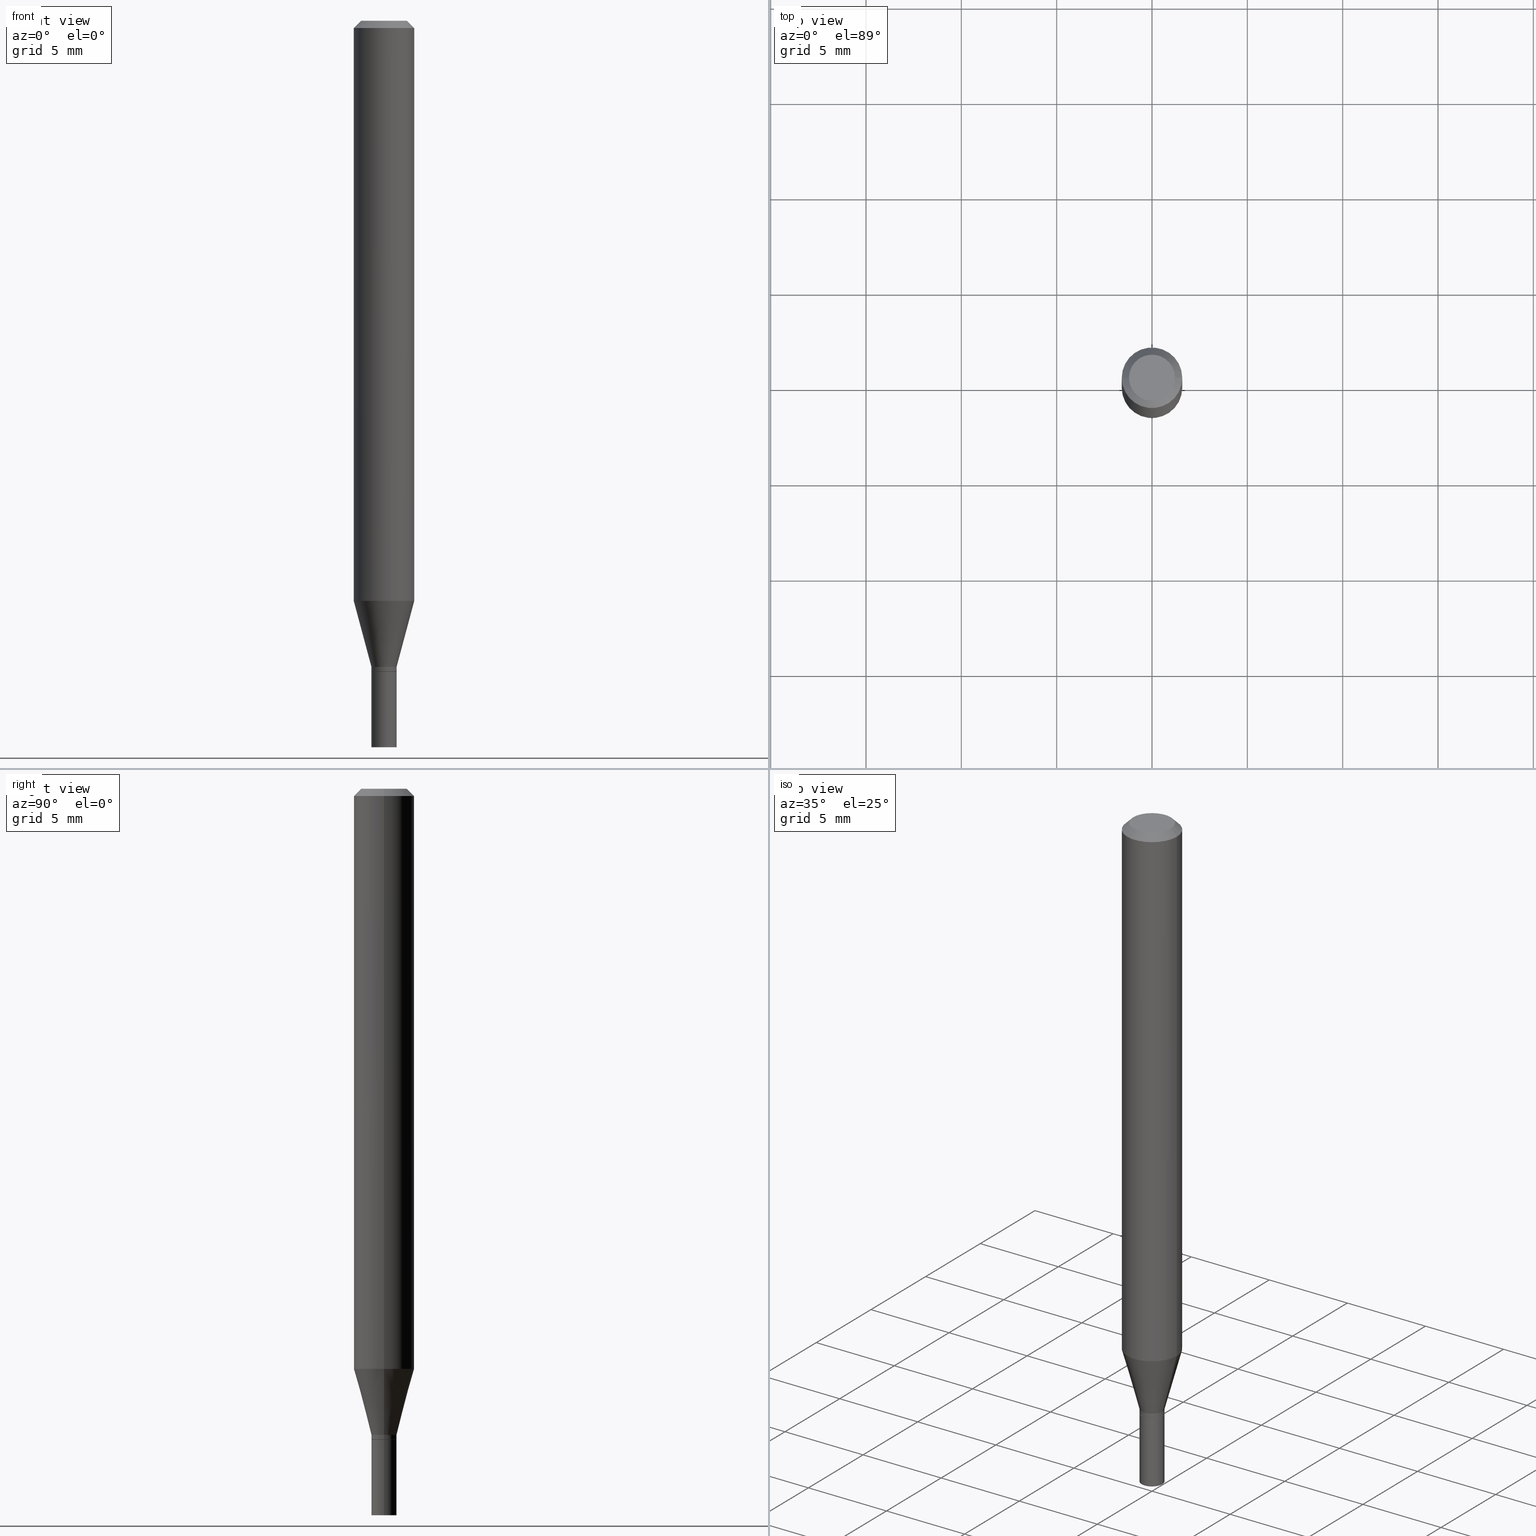
[diagram: canonical four-view strip — front | top / right | iso, engineering-drawing reading convention]
A machine part, canonical four-view strip (front | top / right | iso — engineering-drawing reading convention). The complete STEP part file that produces these views, byte-faithful:
ISO-10303-21;
HEADER;
FILE_DESCRIPTION (( 'STEP AP203' ),
    '1' );
FILE_NAME ('01203.STEP',
    '2024-03-19T23:59:14',
    ( '' ),
    ( '' ),
    'SwSTEP 2.0',
    'SolidWorks 2023',
    '' );
FILE_SCHEMA (( 'CONFIG_CONTROL_DESIGN' ));
ENDSEC;

DATA;
#1 = DIRECTION ( 'NONE',  ( -2.438088387897960049E-29, 3.491481338843145188E-15, 1.000000000000000000 ) ) ;
#2 = DIRECTION ( 'NONE',  ( -2.445468806185136597E-29, 3.491481338843145583E-15, 1.000000000000000000 ) ) ;
#3 = ORIENTED_EDGE ( 'NONE', *, *, #125, .F. ) ;
#4 = AXIS2_PLACEMENT_3D ( 'NONE', #170, #451, #206 ) ;
#5 = AXIS2_PLACEMENT_3D ( 'NONE', #412, #308, #277 ) ;
#6 = CALENDAR_DATE ( 2024, 19, 3 ) ;
#7 = FACE_OUTER_BOUND ( 'NONE', #198, .T. ) ;
#8 = DIRECTION ( 'NONE',  ( -2.445468806185136597E-29, 3.491481338843145583E-15, 1.000000000000000000 ) ) ;
#9 = CARTESIAN_POINT ( 'NONE',  ( -0.02549999999999999489, -4.508713294612252827E-15, -1.344000000000000306 ) ) ;
#10 = ADVANCED_FACE ( 'NONE', ( #202 ), #124, .F. ) ;
#11 = LINE ( 'NONE', #232, #123 ) ;
#12 = CARTESIAN_POINT ( 'NONE',  ( 0.02599999999999999534, -1.815570296198429286E-16, 1.267805961706943054E-30 ) ) ;
#13 = DIRECTION ( 'NONE',  ( -2.445468806185136597E-29, 3.491481338843145583E-15, 1.000000000000000000 ) ) ;
#14 = CIRCLE ( 'NONE', #373, 0.02599999999999991901 ) ;
#15 = AXIS2_PLACEMENT_3D ( 'NONE', #119, #151, #433 ) ;
#16 = PERSON_AND_ORGANIZATION ( #127, #191 ) ;
#17 = FACE_OUTER_BOUND ( 'NONE', #322, .T. ) ;
#18 = CARTESIAN_POINT ( 'NONE',  ( 1.815570296198757649E-16, 0.02599999999999530464, -1.344000000000000306 ) ) ;
#19 = DIRECTION ( 'NONE',  ( -2.445468806185136597E-29, 3.491481338843145583E-15, 1.000000000000000000 ) ) ;
#20 = CIRCLE ( 'NONE', #285, 0.02599999999999999534 ) ;
#21 = AXIS2_PLACEMENT_3D ( 'NONE', #455, #340, #447 ) ;
#22 = DIRECTION ( 'NONE',  ( 2.438088387897960049E-29, -3.491481338843145188E-15, -1.000000000000000000 ) ) ;
#23 = EDGE_CURVE ( 'NONE', #268, #329, #14, .T. ) ;
#24 = ORIENTED_EDGE ( 'NONE', *, *, #416, .T. ) ;
#25 = AXIS2_PLACEMENT_3D ( 'NONE', #217, #167, #275 ) ;
#26 = CONICAL_SURFACE ( 'NONE', #139, 0.02549999999999999489, 0.7853981633974739252 ) ;
#27 = ORIENTED_EDGE ( 'NONE', *, *, #68, .F. ) ;
#28 = VERTEX_POINT ( 'NONE', #9 ) ;
#29 = EDGE_CURVE ( 'NONE', #324, #457, #335, .T. ) ;
#30 = ORIENTED_EDGE ( 'NONE', *, *, #434, .T. ) ;
#31 = ORIENTED_EDGE ( 'NONE', *, *, #195, .T. ) ;
#32 = DIRECTION ( 'NONE',  ( -2.445468806185136877E-29, 3.491481338843145188E-15, 1.000000000000000000 ) ) ;
#33 = AXIS2_PLACEMENT_3D ( 'NONE', #266, #121, #400 ) ;
#34 = APPROVAL_PERSON_ORGANIZATION ( #231, #86, #296 ) ;
#35 = EDGE_LOOP ( 'NONE', ( #315, #313 ) ) ;
#36 =( NAMED_UNIT ( * ) SI_UNIT ( $, .STERADIAN. ) SOLID_ANGLE_UNIT ( ) );
#37 = ADVANCED_FACE ( 'NONE', ( #445 ), #380, .T. ) ;
#38 = ORIENTED_EDGE ( 'NONE', *, *, #214, .T. ) ;
#39 = COORDINATED_UNIVERSAL_TIME_OFFSET ( 5, 0, .BEHIND. ) ;
#40 = DIRECTION ( 'NONE',  ( -2.445468806185136597E-29, 3.491481338843145583E-15, 1.000000000000000000 ) ) ;
#41 = CARTESIAN_POINT ( 'NONE',  ( 0.02599999999999992248, -4.839193135636598797E-15, -1.334000000000000075 ) ) ;
#42 = VERTEX_POINT ( 'NONE', #215 ) ;
#43 = CARTESIAN_POINT ( 'NONE',  ( 0.02549999999999999489, -4.870616467686188228E-15, -1.344000000000000306 ) ) ;
#44 = DIRECTION ( 'NONE',  ( 2.438088387897960049E-29, -3.491481338843145188E-15, -1.000000000000000000 ) ) ;
#45 = VERTEX_POINT ( 'NONE', #173 ) ;
#46 = VECTOR ( 'NONE', #442, 39.37007874015748143 ) ;
#47 = APPROVAL_PERSON_ORGANIZATION ( #52, #64, #201 ) ;
#48 = CARTESIAN_POINT ( 'NONE',  ( 2.929133982546189833E-29, -4.182027026132951363E-15, -1.197780145523736017 ) ) ;
#49 = ORIENTED_EDGE ( 'NONE', *, *, #312, .F. ) ;
#50 = EDGE_CURVE ( 'NONE', #45, #324, #279, .T. ) ;
#51 = ORIENTED_EDGE ( 'NONE', *, *, #68, .T. ) ;
#52 = PERSON_AND_ORGANIZATION ( #127, #191 ) ;
#53 = VECTOR ( 'NONE', #350, 39.37007874015748143 ) ;
#54 = DIRECTION ( 'NONE',  ( 1.000000000000000000, -6.982962677686276966E-15, 0.000000000000000000 ) ) ;
#55 = SECURITY_CLASSIFICATION ( '', '', #307 ) ;
#56 = EDGE_CURVE ( 'NONE', #355, #353, #72, .T. ) ;
#57 = DIRECTION ( 'NONE',  ( 1.000000000000000000, -6.982962677686266711E-15, 0.000000000000000000 ) ) ;
#58 = LINE ( 'NONE', #309, #394 ) ;
#59 = DIRECTION ( 'NONE',  ( -2.445468806185136597E-29, 3.491481338843145583E-15, 1.000000000000000000 ) ) ;
#60 = COORDINATED_UNIVERSAL_TIME_OFFSET ( 5, 0, .BEHIND. ) ;
#61 = CARTESIAN_POINT ( 'NONE',  ( -0.02599999999999999534, -4.780145352537327941E-15, -1.344000000000000306 ) ) ;
#62 = ADVANCED_FACE ( 'NONE', ( #223 ), #238, .F. ) ;
#63 = DIRECTION ( 'NONE',  ( 1.000000000000000000, -6.982962677686278543E-15, 0.000000000000000000 ) ) ;
#64 = APPROVAL ( #209, 'UNSPECIFIED' ) ;
#65 = AXIS2_PLACEMENT_3D ( 'NONE', #18, #22, #245 ) ;
#66 = MANIFOLD_SOLID_BREP ( 'Body-Move/Copy2[1]', #122 ) ;
#67 = ORIENTED_EDGE ( 'NONE', *, *, #29, .F. ) ;
#68 = EDGE_CURVE ( 'NONE', #42, #361, #11, .T. ) ;
#69 = APPROVAL_PERSON_ORGANIZATION ( #411, #288, #207 ) ;
#70 = EDGE_LOOP ( 'NONE', ( #252, #415, #179, #429 ) ) ;
#71 = DIRECTION ( 'NONE',  ( -2.445468806185136597E-29, 3.491481338843145583E-15, 1.000000000000000000 ) ) ;
#72 = LINE ( 'NONE', #41, #74 ) ;
#73 = CC_DESIGN_DATE_AND_TIME_ASSIGNMENT ( #239, #234, ( #387 ) ) ;
#74 = VECTOR ( 'NONE', #255, 39.37007874015747433 ) ;
#75 = CARTESIAN_POINT ( 'NONE',  ( -0.04749999999999999362, 3.578768372314212971E-16, 1.471062854863204137E-16 ) ) ;
#76 = DIRECTION ( 'NONE',  ( 1.000000000000000000, -6.982962677686267499E-15, 4.852736867747366768E-29 ) ) ;
#77 = AXIS2_PLACEMENT_3D ( 'NONE', #197, #323, #294 ) ;
#78 = LOCAL_TIME ( 19, 59, 14.00000000000000000, #271 ) ;
#79 = LINE ( 'NONE', #421, #53 ) ;
#80 = ORIENTED_EDGE ( 'NONE', *, *, #434, .F. ) ;
#81 = DIRECTION ( 'NONE',  ( 1.000000000000000000, -6.982962677686258822E-15, 0.000000000000000000 ) ) ;
#82 = FACE_OUTER_BOUND ( 'NONE', #140, .T. ) ;
#83 = PERSON_AND_ORGANIZATION ( #127, #191 ) ;
#84 = LINE ( 'NONE', #43, #163 ) ;
#85 = CONICAL_SURFACE ( 'NONE', #300, 0.06250000000000000000, 0.7853981633974435050 ) ;
#86 = APPROVAL ( #360, 'UNSPECIFIED' ) ;
#87 = CARTESIAN_POINT ( 'NONE',  ( 3.668203209277705088E-31, -5.237222008264718399E-17, -0.01499999999999999944 ) ) ;
#88 = DATE_AND_TIME ( #178, #301 ) ;
#89 = ADVANCED_FACE ( 'NONE', ( #203 ), #463, .T. ) ;
#90 = ADVANCED_FACE ( 'NONE', ( #333 ), #438, .T. ) ;
#91 = CARTESIAN_POINT ( 'NONE',  ( 2.929133982546189833E-29, -4.182027026132951363E-15, -1.197780145523736017 ) ) ;
#92 = AXIS2_PLACEMENT_3D ( 'NONE', #99, #414, #131 ) ;
#93 = CARTESIAN_POINT ( 'NONE',  ( 3.262255387450972157E-29, -4.657636106016756115E-15, -1.334000000000000075 ) ) ;
#94 = CC_DESIGN_APPROVAL ( #288, ( #55 ) ) ;
#95 = PERSON_AND_ORGANIZATION_ROLE ( 'design_supplier' ) ;
#96 = DIRECTION ( 'NONE',  ( -2.445468806185136597E-29, 3.491481338843145583E-15, 1.000000000000000000 ) ) ;
#97 = EDGE_CURVE ( 'NONE', #224, #418, #249, .T. ) ;
#98 = EDGE_CURVE ( 'NONE', #418, #107, #157, .T. ) ;
#99 = CARTESIAN_POINT ( 'NONE',  ( 3.262255387450972157E-29, -4.657636106016756115E-15, -1.334000000000000075 ) ) ;
#100 = APPROVAL_DATE_TIME ( #134, #64 ) ;
#101 = CIRCLE ( 'NONE', #320, 0.06250000000000000000 ) ;
#102 = LOCAL_TIME ( 19, 59, 14.00000000000000000, #165 ) ;
#103 = EDGE_LOOP ( 'NONE', ( #38, #24, #104, #67 ) ) ;
#104 = ORIENTED_EDGE ( 'NONE', *, *, #352, .F. ) ;
#105 = CC_DESIGN_APPROVAL ( #64, ( #280 ) ) ;
#106 = ORIENTED_EDGE ( 'NONE', *, *, #29, .T. ) ;
#107 = VERTEX_POINT ( 'NONE', #431 ) ;
#108 = CARTESIAN_POINT ( 'NONE',  ( 3.286710075512824263E-29, -4.692550919405188553E-15, -1.344000000000000306 ) ) ;
#109 = EDGE_CURVE ( 'NONE', #175, #28, #337, .T. ) ;
#110 =( LENGTH_UNIT ( ) NAMED_UNIT ( * ) SI_UNIT ( $, .METRE. ) );
#111 = CARTESIAN_POINT ( 'NONE',  ( 3.286710075512824263E-29, -4.692550919405188553E-15, -1.344000000000000306 ) ) ;
#112 = DIRECTION ( 'NONE',  ( -2.445468806185136597E-29, 3.491481338843145583E-15, 1.000000000000000000 ) ) ;
#113 = APPLICATION_PROTOCOL_DEFINITION ( 'international standard', 'config_control_design', 1994, #391 ) ;
#114 = AXIS2_PLACEMENT_3D ( 'NONE', #236, #13, #164 ) ;
#115 = DIRECTION ( 'NONE',  ( 1.000000000000000000, -6.982962677686276966E-15, 0.000000000000000000 ) ) ;
#116 = DIRECTION ( 'NONE',  ( -1.000000000000000000, 6.982962677686265922E-15, -4.876176775795935793E-29 ) ) ;
#117 = CARTESIAN_POINT ( 'NONE',  ( 3.668203209277704895E-29, -5.237222008264718177E-15, -1.500000000000000222 ) ) ;
#118 = ORIENTED_EDGE ( 'NONE', *, *, #243, .T. ) ;
#119 = CARTESIAN_POINT ( 'NONE',  ( 0.000000000000000000, 0.000000000000000000, 0.000000000000000000 ) ) ;
#120 = EDGE_CURVE ( 'NONE', #224, #282, #392, .T. ) ;
#121 = DIRECTION ( 'NONE',  ( -2.445468806185136597E-29, 3.491481338843145583E-15, 1.000000000000000000 ) ) ;
#122 = CLOSED_SHELL ( 'NONE', ( #246, #453, #90, #278 ) ) ;
#123 = VECTOR ( 'NONE', #321, 39.37007874015747433 ) ;
#124 = PLANE ( 'NONE',  #4 ) ;
#125 = EDGE_CURVE ( 'NONE', #353, #282, #79, .T. ) ;
#126 = DIRECTION ( 'NONE',  ( -2.445468806185136597E-29, 3.491481338843145583E-15, 1.000000000000000000 ) ) ;
#127 = PERSON ( 'UNSPECIFIED', 'UNSPECIFIED', 'UNSPECIFIED', ('UNSPECIFIED'), ('UNSPECIFIED'), ('UNSPECIFIED') ) ;
#128 = EDGE_CURVE ( 'NONE', #418, #224, #210, .T. ) ;
#129 = DIRECTION ( 'NONE',  ( -2.445468806185136597E-29, 3.491481338843145583E-15, 1.000000000000000000 ) ) ;
#130 = DATE_TIME_ROLE ( 'classification_date' ) ;
#131 = DIRECTION ( 'NONE',  ( 1.000000000000000000, -6.982962677686278543E-15, 0.000000000000000000 ) ) ;
#132 = AXIS2_PLACEMENT_3D ( 'NONE', #159, #2, #466 ) ;
#133 = DIRECTION ( 'NONE',  ( -2.445468806185136877E-29, 3.491481338843145188E-15, 1.000000000000000000 ) ) ;
#134 = DATE_AND_TIME ( #262, #102 ) ;
#135 = DIRECTION ( 'NONE',  ( -2.445468806185136597E-29, 3.491481338843145583E-15, 1.000000000000000000 ) ) ;
#136 = CARTESIAN_POINT ( 'NONE',  ( -0.02599999999999992248, 1.847411112976254975E-16, -1.278923123466271707E-30 ) ) ;
#137 = AXIS2_PLACEMENT_3D ( 'NONE', #317, #71, #76 ) ;
#138 =( GEOMETRIC_REPRESENTATION_CONTEXT ( 3 ) GLOBAL_UNCERTAINTY_ASSIGNED_CONTEXT ( ( #166 ) ) GLOBAL_UNIT_ASSIGNED_CONTEXT ( ( #200, #290, #36 ) ) REPRESENTATION_CONTEXT ( 'NONE', 'WORKASPACE' ) );
#139 = AXIS2_PLACEMENT_3D ( 'NONE', #111, #289, #115 ) ;
#140 = EDGE_LOOP ( 'NONE', ( #427, #189, #376, #196 ) ) ;
#141 = ADVANCED_FACE ( 'NONE', ( #229 ), #465, .T. ) ;
#142 = EDGE_CURVE ( 'NONE', #361, #107, #58, .T. ) ;
#143 = ORIENTED_EDGE ( 'NONE', *, *, #186, .T. ) ;
#144 = ORIENTED_EDGE ( 'NONE', *, *, #331, .F. ) ;
#145 = AXIS2_PLACEMENT_3D ( 'NONE', #377, #96, #57 ) ;
#146 = DIRECTION ( 'NONE',  ( 1.000000000000000000, -6.982962677686258822E-15, 0.000000000000000000 ) ) ;
#147 = EDGE_CURVE ( 'NONE', #28, #329, #351, .T. ) ;
#148 = DIRECTION ( 'NONE',  ( 1.000000000000000000, -6.982962677686270655E-15, 0.000000000000000000 ) ) ;
#149 = CARTESIAN_POINT ( 'NONE',  ( 3.286710075512824263E-29, -4.692550919405188553E-15, -1.344000000000000306 ) ) ;
#150 = CARTESIAN_POINT ( 'NONE',  ( 0.02599999999999992248, -4.839193135636598797E-15, -1.334000000000000075 ) ) ;
#151 = DIRECTION ( 'NONE',  ( 0.000000000000000000, 0.000000000000000000, 1.000000000000000000 ) ) ;
#152 = CARTESIAN_POINT ( 'NONE',  ( 3.668203209277705088E-31, -5.237222008264718399E-17, -0.01499999999999999944 ) ) ;
#153 = VECTOR ( 'NONE', #356, 39.37007874015748143 ) ;
#154 = CARTESIAN_POINT ( 'NONE',  ( -3.597438323505677396E-45, 5.136188506020282969E-31, 1.471062854863228050E-16 ) ) ;
#155 = ORIENTED_EDGE ( 'NONE', *, *, #258, .F. ) ;
#156 = MECHANICAL_CONTEXT ( 'NONE', #327, 'mechanical' ) ;
#157 = LINE ( 'NONE', #297, #153 ) ;
#158 = PERSON_AND_ORGANIZATION_ROLE ( 'creator' ) ;
#159 = CARTESIAN_POINT ( 'NONE',  ( 0.000000000000000000, 0.000000000000000000, 0.000000000000000000 ) ) ;
#160 = APPROVAL_DATE_TIME ( #374, #288 ) ;
#161 = ADVANCED_FACE ( 'NONE', ( #378 ), #367, .T. ) ;
#162 = EDGE_LOOP ( 'NONE', ( #382, #363 ) ) ;
#163 = VECTOR ( 'NONE', #237, 39.37007874015748143 ) ;
#164 = DIRECTION ( 'NONE',  ( 1.000000000000000000, -6.982962677686267499E-15, 4.876176775795936353E-29 ) ) ;
#165 = COORDINATED_UNIVERSAL_TIME_OFFSET ( 5, 0, .BEHIND. ) ;
#166 = UNCERTAINTY_MEASURE_WITH_UNIT (LENGTH_MEASURE( 1.000000000000000082E-05 ), #200, 'distance_accuracy_value', 'NONE');
#167 = DIRECTION ( 'NONE',  ( -2.445468806185136597E-29, 3.491481338843145583E-15, 1.000000000000000000 ) ) ;
#168 = ORIENTED_EDGE ( 'NONE', *, *, #416, .F. ) ;
#169 = FACE_OUTER_BOUND ( 'NONE', #103, .T. ) ;
#170 = CARTESIAN_POINT ( 'NONE',  ( 3.286710075512824263E-29, -4.692550919405188553E-15, -1.344000000000000306 ) ) ;
#171 = CIRCLE ( 'NONE', #182, 0.06250000000000000000 ) ;
#172 = CYLINDRICAL_SURFACE ( 'NONE', #25, 0.02599999999999999534 ) ;
#173 = CARTESIAN_POINT ( 'NONE',  ( -0.02599999999999999534, -4.780145352537327941E-15, -1.500000000000000222 ) ) ;
#174 = CC_DESIGN_PERSON_AND_ORGANIZATION_ASSIGNMENT ( #260, #364, ( #345 ) ) ;
#175 = VERTEX_POINT ( 'NONE', #302 ) ;
#176 = ORIENTED_EDGE ( 'NONE', *, *, #125, .T. ) ;
#177 = ADVANCED_FACE ( 'NONE', ( #7 ), #85, .T. ) ;
#178 = CALENDAR_DATE ( 2024, 19, 3 ) ;
#179 = ORIENTED_EDGE ( 'NONE', *, *, #251, .T. ) ;
#180 = ADVANCED_FACE ( 'NONE', ( #82 ), #425, .T. ) ;
#181 = ORIENTED_EDGE ( 'NONE', *, *, #97, .T. ) ;
#182 = AXIS2_PLACEMENT_3D ( 'NONE', #87, #240, #366 ) ;
#183 = CIRCLE ( 'NONE', #358, 0.02549999999999999489 ) ;
#184 = PERSON_AND_ORGANIZATION_ROLE ( 'creator' ) ;
#185 = ORIENTED_EDGE ( 'NONE', *, *, #346, .T. ) ;
#186 = EDGE_CURVE ( 'NONE', #353, #361, #101, .T. ) ;
#187 = ADVANCED_FACE ( 'NONE', ( #291 ), #261, .T. ) ;
#188 = ORIENTED_EDGE ( 'NONE', *, *, #449, .F. ) ;
#189 = ORIENTED_EDGE ( 'NONE', *, *, #147, .T. ) ;
#190 = DIRECTION ( 'NONE',  ( -2.445468806185136877E-29, 3.491481338843145188E-15, 1.000000000000000000 ) ) ;
#191 = ORGANIZATION ( 'UNSPECIFIED', 'UNSPECIFIED', '' ) ;
#192 = FACE_OUTER_BOUND ( 'NONE', #359, .T. ) ;
#193 = DIRECTION ( 'NONE',  ( 1.000000000000000000, -6.982962677686258822E-15, 0.000000000000000000 ) ) ;
#194 = DIMENSIONAL_EXPONENTS ( 1.000000000000000000, 0.000000000000000000, 0.000000000000000000, 0.000000000000000000, 0.000000000000000000, 0.000000000000000000, 0.000000000000000000 ) ;
#195 = EDGE_CURVE ( 'NONE', #107, #282, #171, .T. ) ;
#196 = ORIENTED_EDGE ( 'NONE', *, *, #365, .F. ) ;
#197 = CARTESIAN_POINT ( 'NONE',  ( 0.000000000000000000, 0.000000000000000000, 0.000000000000000000 ) ) ;
#198 = EDGE_LOOP ( 'NONE', ( #462, #385, #432, #31 ) ) ;
#199 = AXIS2_PLACEMENT_3D ( 'NONE', #341, #129, #448 ) ;
#200 =( CONVERSION_BASED_UNIT ( 'INCH', #330 ) LENGTH_UNIT ( ) NAMED_UNIT ( #194 ) );
#201 = APPROVAL_ROLE ( '' ) ;
#202 = FACE_OUTER_BOUND ( 'NONE', #386, .T. ) ;
#203 = FACE_OUTER_BOUND ( 'NONE', #269, .T. ) ;
#204 = CALENDAR_DATE ( 2024, 19, 3 ) ;
#205 = DIRECTION ( 'NONE',  ( -2.445468806185136597E-29, 3.491481338843145583E-15, 1.000000000000000000 ) ) ;
#206 = DIRECTION ( 'NONE',  ( 1.000000000000000000, -6.982962677686265922E-15, 4.876176775795935793E-29 ) ) ;
#207 = APPROVAL_ROLE ( '' ) ;
#208 = DIRECTION ( 'NONE',  ( 2.445468806185136597E-29, -3.491481338843145583E-15, -1.000000000000000000 ) ) ;
#209 = APPROVAL_STATUS ( 'not_yet_approved' ) ;
#210 = CIRCLE ( 'NONE', #137, 0.04749999999999999362 ) ;
#211 = LINE ( 'NONE', #136, #396 ) ;
#212 = APPROVAL_STATUS ( 'not_yet_approved' ) ;
#213 = CARTESIAN_POINT ( 'NONE',  ( 0.02599999999999992248, -1.815570296198424109E-16, 1.267805961706939726E-30 ) ) ;
#214 = EDGE_CURVE ( 'NONE', #324, #45, #20, .T. ) ;
#215 = CARTESIAN_POINT ( 'NONE',  ( -0.02599999999999992248, -4.105416405501009719E-15, -1.334000000000000075 ) ) ;
#216 = AXIS2_PLACEMENT_3D ( 'NONE', #325, #126, #54 ) ;
#217 = CARTESIAN_POINT ( 'NONE',  ( 0.000000000000000000, 0.000000000000000000, 0.000000000000000000 ) ) ;
#218 = PRODUCT_RELATED_PRODUCT_CATEGORY ( 'detail', '', ( #345 ) ) ;
#219 = ORIENTED_EDGE ( 'NONE', *, *, #56, .F. ) ;
#220 = EDGE_LOOP ( 'NONE', ( #143, #458, #388, #3 ) ) ;
#221 = EDGE_LOOP ( 'NONE', ( #144, #306, #118, #389 ) ) ;
#222 = CARTESIAN_POINT ( 'NONE',  ( -0.02599999999999999534, 1.847411112976260152E-16, -1.278923123466275386E-30 ) ) ;
#223 = FACE_OUTER_BOUND ( 'NONE', #420, .T. ) ;
#224 = VERTEX_POINT ( 'NONE', #233 ) ;
#225 = DIRECTION ( 'NONE',  ( 1.000000000000000000, -6.982962677686258822E-15, 0.000000000000000000 ) ) ;
#226 = AXIS2_PLACEMENT_3D ( 'NONE', #263, #406, #276 ) ;
#227 = AXIS2_PLACEMENT_3D ( 'NONE', #149, #424, #146 ) ;
#228 = MANIFOLD_SOLID_BREP ( 'Body-Move/Copy2[2]', #444 ) ;
#229 = FACE_OUTER_BOUND ( 'NONE', #220, .T. ) ;
#230 = ORIENTED_EDGE ( 'NONE', *, *, #365, .T. ) ;
#231 = PERSON_AND_ORGANIZATION ( #127, #191 ) ;
#232 = CARTESIAN_POINT ( 'NONE',  ( -0.02599999999999992248, -4.472894994719129903E-15, -1.334000000000000075 ) ) ;
#233 = CARTESIAN_POINT ( 'NONE',  ( 0.04749999999999999362, -4.035134999187575172E-16, 1.471062854863253934E-16 ) ) ;
#234 = DATE_TIME_ROLE ( 'creation_date' ) ;
#235 = DIRECTION ( 'NONE',  ( -2.445468806185136597E-29, 3.491481338843145583E-15, 1.000000000000000000 ) ) ;
#236 = CARTESIAN_POINT ( 'NONE',  ( 0.000000000000000000, 0.000000000000000000, 0.000000000000000000 ) ) ;
#237 = DIRECTION ( 'NONE',  ( 0.7071067811865656694, -2.468850131082446387E-15, 0.7071067811865294761 ) ) ;
#238 = PLANE ( 'NONE',  #326 ) ;
#239 = DATE_AND_TIME ( #368, #339 ) ;
#240 = DIRECTION ( 'NONE',  ( -2.445468806185136597E-29, 3.491481338843145583E-15, 1.000000000000000000 ) ) ;
#241 = VECTOR ( 'NONE', #428, 39.37007874015748143 ) ;
#242 = CARTESIAN_POINT ( 'NONE',  ( -0.02599999999999991901, -4.506064067438141626E-15, -1.343500000000000361 ) ) ;
#243 = EDGE_CURVE ( 'NONE', #268, #355, #304, .T. ) ;
#244 = FACE_OUTER_BOUND ( 'NONE', #316, .T. ) ;
#245 = DIRECTION ( 'NONE',  ( -1.000000000000000000, 6.982962677686265922E-15, -4.876176775795935793E-29 ) ) ;
#246 = ADVANCED_FACE ( 'NONE', ( #169 ), #172, .T. ) ;
#247 = CIRCLE ( 'NONE', #227, 0.02599999999999999534 ) ;
#248 = ORIENTED_EDGE ( 'NONE', *, *, #331, .T. ) ;
#249 = CIRCLE ( 'NONE', #273, 0.04749999999999999362 ) ;
#250 = PERSON_AND_ORGANIZATION ( #127, #191 ) ;
#251 = EDGE_CURVE ( 'NONE', #282, #107, #292, .T. ) ;
#252 = ORIENTED_EDGE ( 'NONE', *, *, #97, .F. ) ;
#253 = CARTESIAN_POINT ( 'NONE',  ( 0.02599999999999999534, -4.874107949025031235E-15, -1.344000000000000306 ) ) ;
#254 = ORIENTED_EDGE ( 'NONE', *, *, #128, .T. ) ;
#255 = DIRECTION ( 'NONE',  ( 0.2588190451025213501, 1.565188264969621968E-15, 0.9659258262890682012 ) ) ;
#256 = DIRECTION ( 'NONE',  ( -2.445468806185136597E-29, 3.491481338843145583E-15, 1.000000000000000000 ) ) ;
#257 = ORIENTED_EDGE ( 'NONE', *, *, #186, .F. ) ;
#258 = EDGE_CURVE ( 'NONE', #355, #42, #460, .T. ) ;
#259 = CARTESIAN_POINT ( 'NONE',  ( 0.06250000000000000000, -4.811533449433679005E-16, -0.01499999999999999944 ) ) ;
#260 = PERSON_AND_ORGANIZATION ( #127, #191 ) ;
#261 = CYLINDRICAL_SURFACE ( 'NONE', #114, 0.02599999999999992248 ) ;
#262 = CALENDAR_DATE ( 2024, 19, 3 ) ;
#263 = CARTESIAN_POINT ( 'NONE',  ( 3.668203209277705088E-31, -5.237222008264718399E-17, -0.01499999999999999944 ) ) ;
#264 = CIRCLE ( 'NONE', #347, 0.02599999999999992248 ) ;
#265 = SHAPE_DEFINITION_REPRESENTATION ( #419, #362 ) ;
#266 = CARTESIAN_POINT ( 'NONE',  ( 3.262255387450972157E-29, -4.657636106016756115E-15, -1.334000000000000075 ) ) ;
#267 = DIRECTION ( 'NONE',  ( -2.445468806185136597E-29, 3.491481338843145583E-15, 1.000000000000000000 ) ) ;
#268 = VERTEX_POINT ( 'NONE', #343 ) ;
#269 = EDGE_LOOP ( 'NONE', ( #410, #30, #176, #397 ) ) ;
#270 = EDGE_CURVE ( 'NONE', #42, #355, #264, .T. ) ;
#271 = COORDINATED_UNIVERSAL_TIME_OFFSET ( 5, 0, .BEHIND. ) ;
#272 = CYLINDRICAL_SURFACE ( 'NONE', #5, 0.02599999999999992248 ) ;
#273 = AXIS2_PLACEMENT_3D ( 'NONE', #154, #235, #328 ) ;
#274 = PERSON_AND_ORGANIZATION_ROLE ( 'classification_officer' ) ;
#275 = DIRECTION ( 'NONE',  ( 1.000000000000000000, -6.982962677686267499E-15, 4.876176775795935793E-29 ) ) ;
#276 = DIRECTION ( 'NONE',  ( -1.000000000000000000, 6.982962677686266711E-15, 0.000000000000000000 ) ) ;
#277 = DIRECTION ( 'NONE',  ( 1.000000000000000000, -6.982962677686267499E-15, 4.876176775795936353E-29 ) ) ;
#278 = ADVANCED_FACE ( 'NONE', ( #344 ), #342, .F. ) ;
#279 = CIRCLE ( 'NONE', #452, 0.02599999999999999534 ) ;
#280 = PRODUCT_DEFINITION_FORMATION_WITH_SPECIFIED_SOURCE ( 'ANY', '', #345, .NOT_KNOWN. ) ;
#281 = PERSON_AND_ORGANIZATION ( #127, #191 ) ;
#282 = VERTEX_POINT ( 'NONE', #375 ) ;
#283 = ADVANCED_FACE ( 'NONE', ( #244 ), #272, .T. ) ;
#284 = ORIENTED_EDGE ( 'NONE', *, *, #56, .T. ) ;
#285 = AXIS2_PLACEMENT_3D ( 'NONE', #117, #256, #81 ) ;
#286 = VECTOR ( 'NONE', #32, 39.37007874015748143 ) ;
#287 = DIRECTION ( 'NONE',  ( 1.000000000000000000, -6.982962677686265922E-15, 4.876176775795935793E-29 ) ) ;
#288 = APPROVAL ( #212, 'UNSPECIFIED' ) ;
#289 = DIRECTION ( 'NONE',  ( -2.445468806185136597E-29, 3.491481338843145583E-15, 1.000000000000000000 ) ) ;
#290 =( NAMED_UNIT ( * ) PLANE_ANGLE_UNIT ( ) SI_UNIT ( $, .RADIAN. ) );
#291 = FACE_OUTER_BOUND ( 'NONE', #221, .T. ) ;
#292 = CIRCLE ( 'NONE', #145, 0.06250000000000000000 ) ;
#293 = AXIS2_PLACEMENT_3D ( 'NONE', #93, #19, #63 ) ;
#294 = DIRECTION ( 'NONE',  ( 1.000000000000000000, -6.982962677686266711E-15, 4.876176775795935793E-29 ) ) ;
#295 = VERTEX_POINT ( 'NONE', #61 ) ;
#296 = APPROVAL_ROLE ( '' ) ;
#297 = CARTESIAN_POINT ( 'NONE',  ( -0.06250000000000000000, 3.840629472727444916E-16, -0.01499999999999999944 ) ) ;
#298 = DIRECTION ( 'NONE',  ( -2.445468806185136877E-29, 3.491481338843145188E-15, 1.000000000000000000 ) ) ;
#299 = DIRECTION ( 'NONE',  ( 1.000000000000000000, -6.982962677686276966E-15, 0.000000000000000000 ) ) ;
#300 = AXIS2_PLACEMENT_3D ( 'NONE', #152, #208, #372 ) ;
#301 = LOCAL_TIME ( 19, 59, 14.00000000000000000, #39 ) ;
#302 = CARTESIAN_POINT ( 'NONE',  ( 0.02549999999999999489, -4.870616467686188228E-15, -1.344000000000000306 ) ) ;
#303 = ADVANCED_FACE ( 'NONE', ( #17 ), #381, .T. ) ;
#304 = LINE ( 'NONE', #213, #435 ) ;
#305 = COORDINATED_UNIVERSAL_TIME_OFFSET ( 5, 0, .BEHIND. ) ;
#306 = ORIENTED_EDGE ( 'NONE', *, *, #312, .T. ) ;
#307 = SECURITY_CLASSIFICATION_LEVEL ( 'unclassified' ) ;
#308 = DIRECTION ( 'NONE',  ( -2.445468806185136597E-29, 3.491481338843145583E-15, 1.000000000000000000 ) ) ;
#309 = CARTESIAN_POINT ( 'NONE',  ( -0.06250000000000000000, 4.440892098500626162E-16, -3.074334431409316114E-30 ) ) ;
#310 = AXIS2_PLACEMENT_3D ( 'NONE', #390, #1, #287 ) ;
#311 = DIRECTION ( 'NONE',  ( -2.445468806185136597E-29, 3.491481338843145583E-15, 1.000000000000000000 ) ) ;
#312 = EDGE_CURVE ( 'NONE', #329, #268, #454, .T. ) ;
#313 = ORIENTED_EDGE ( 'NONE', *, *, #50, .F. ) ;
#314 = DIRECTION ( 'NONE',  ( 1.000000000000000000, -6.982962677686276966E-15, 0.000000000000000000 ) ) ;
#315 = ORIENTED_EDGE ( 'NONE', *, *, #214, .F. ) ;
#316 = EDGE_LOOP ( 'NONE', ( #349, #248, #155, #348 ) ) ;
#317 = CARTESIAN_POINT ( 'NONE',  ( -3.597438323505677396E-45, 5.136188506020282969E-31, 1.471062854863228050E-16 ) ) ;
#318 = CARTESIAN_POINT ( 'NONE',  ( -0.02549999999999999489, -4.511362521786362450E-15, -1.344000000000000306 ) ) ;
#319 = ORIENTED_EDGE ( 'NONE', *, *, #346, .F. ) ;
#320 = AXIS2_PLACEMENT_3D ( 'NONE', #48, #267, #336 ) ;
#321 = DIRECTION ( 'NONE',  ( -0.2588190451025213501, 5.211531920934551042E-15, 0.9659258262890682012 ) ) ;
#322 = EDGE_LOOP ( 'NONE', ( #27, #403, #284, #80 ) ) ;
#323 = DIRECTION ( 'NONE',  ( -2.445468806185136597E-29, 3.491481338843145583E-15, 1.000000000000000000 ) ) ;
#324 = VERTEX_POINT ( 'NONE', #407 ) ;
#325 = CARTESIAN_POINT ( 'NONE',  ( 3.286710075512824263E-29, -4.692550919405188553E-15, -1.344000000000000306 ) ) ;
#326 = AXIS2_PLACEMENT_3D ( 'NONE', #402, #44, #116 ) ;
#327 = APPLICATION_CONTEXT ( 'configuration controlled 3d designs of mechanical parts and assemblies' ) ;
#328 = DIRECTION ( 'NONE',  ( 1.000000000000000000, -6.982962677686267499E-15, 4.852736867747366768E-29 ) ) ;
#329 = VERTEX_POINT ( 'NONE', #242 ) ;
#330 = LENGTH_MEASURE_WITH_UNIT ( LENGTH_MEASURE( 0.02539999999999999897 ), #110 );
#331 = EDGE_CURVE ( 'NONE', #329, #42, #211, .T. ) ;
#332 = CARTESIAN_POINT ( 'NONE',  ( 3.285487341109732022E-29, -4.690805178735767049E-15, -1.343500000000000361 ) ) ;
#333 = FACE_OUTER_BOUND ( 'NONE', #439, .T. ) ;
#334 = PLANE ( 'NONE',  #310 ) ;
#335 = LINE ( 'NONE', #12, #338 ) ;
#336 = DIRECTION ( 'NONE',  ( 1.000000000000000000, -6.982962677686270655E-15, 0.000000000000000000 ) ) ;
#337 = CIRCLE ( 'NONE', #384, 0.02549999999999999489 ) ;
#338 = VECTOR ( 'NONE', #298, 39.37007874015748143 ) ;
#339 = LOCAL_TIME ( 19, 59, 14.00000000000000000, #305 ) ;
#340 = DIRECTION ( 'NONE',  ( -2.445468806185136597E-29, 3.491481338843145583E-15, 1.000000000000000000 ) ) ;
#341 = CARTESIAN_POINT ( 'NONE',  ( 0.000000000000000000, 0.000000000000000000, 0.000000000000000000 ) ) ;
#342 = PLANE ( 'NONE',  #65 ) ;
#343 = CARTESIAN_POINT ( 'NONE',  ( 0.02599999999999991901, -4.872362208355609731E-15, -1.343500000000000361 ) ) ;
#344 = FACE_OUTER_BOUND ( 'NONE', #162, .T. ) ;
#345 = PRODUCT ( '01203', '01203', '', ( #156 ) ) ;
#346 = EDGE_CURVE ( 'NONE', #28, #175, #183, .T. ) ;
#347 = AXIS2_PLACEMENT_3D ( 'NONE', #450, #311, #379 ) ;
#348 = ORIENTED_EDGE ( 'NONE', *, *, #243, .F. ) ;
#349 = ORIENTED_EDGE ( 'NONE', *, *, #23, .T. ) ;
#350 = DIRECTION ( 'NONE',  ( -2.445468806185136877E-29, 3.491481338843145188E-15, 1.000000000000000000 ) ) ;
#351 = LINE ( 'NONE', #318, #241 ) ;
#352 = EDGE_CURVE ( 'NONE', #457, #295, #247, .T. ) ;
#353 = VERTEX_POINT ( 'NONE', #401 ) ;
#354 = CC_DESIGN_PERSON_AND_ORGANIZATION_ASSIGNMENT ( #16, #274, ( #55 ) ) ;
#355 = VERTEX_POINT ( 'NONE', #150 ) ;
#356 = DIRECTION ( 'NONE',  ( -0.7071067811865441310, 2.468850131082221167E-15, -0.7071067811865509034 ) ) ;
#357 = EDGE_LOOP ( 'NONE', ( #459, #51, #257, #219 ) ) ;
#358 = AXIS2_PLACEMENT_3D ( 'NONE', #108, #40, #314 ) ;
#359 = EDGE_LOOP ( 'NONE', ( #422, #185, #230, #49 ) ) ;
#360 = APPROVAL_STATUS ( 'not_yet_approved' ) ;
#361 = VERTEX_POINT ( 'NONE', #464 ) ;
#362 = ADVANCED_BREP_SHAPE_REPRESENTATION ( '01203', ( #66, #228, #15 ), #138 ) ;
#363 = ORIENTED_EDGE ( 'NONE', *, *, #449, .T. ) ;
#364 = PERSON_AND_ORGANIZATION_ROLE ( 'design_owner' ) ;
#365 = EDGE_CURVE ( 'NONE', #175, #268, #84, .T. ) ;
#366 = DIRECTION ( 'NONE',  ( 1.000000000000000000, -6.982962677686266711E-15, 0.000000000000000000 ) ) ;
#367 = CONICAL_SURFACE ( 'NONE', #33, 0.02599999999999992248, 0.2617993877991500740 ) ;
#368 = CALENDAR_DATE ( 2024, 19, 3 ) ;
#369 = CIRCLE ( 'NONE', #426, 0.02599999999999999534 ) ;
#370 = FACE_OUTER_BOUND ( 'NONE', #35, .T. ) ;
#371 = CC_DESIGN_DATE_AND_TIME_ASSIGNMENT ( #441, #130, ( #55 ) ) ;
#372 = DIRECTION ( 'NONE',  ( -1.000000000000000000, 6.982962677686266711E-15, 0.000000000000000000 ) ) ;
#373 = AXIS2_PLACEMENT_3D ( 'NONE', #332, #135, #404 ) ;
#374 = DATE_AND_TIME ( #6, #78 ) ;
#375 = CARTESIAN_POINT ( 'NONE',  ( 0.06250000000000000000, -4.888073874380388472E-16, -0.01499999999999999944 ) ) ;
#376 = ORIENTED_EDGE ( 'NONE', *, *, #23, .F. ) ;
#377 = CARTESIAN_POINT ( 'NONE',  ( 3.668203209277705088E-31, -5.237222008264718399E-17, -0.01499999999999999944 ) ) ;
#378 = FACE_OUTER_BOUND ( 'NONE', #357, .T. ) ;
#379 = DIRECTION ( 'NONE',  ( 1.000000000000000000, -6.982962677686278543E-15, 0.000000000000000000 ) ) ;
#380 = CONICAL_SURFACE ( 'NONE', #226, 0.06250000000000000000, 0.7853981633974435050 ) ;
#381 = CONICAL_SURFACE ( 'NONE', #293, 0.02599999999999992248, 0.2617993877991500740 ) ;
#382 = ORIENTED_EDGE ( 'NONE', *, *, #352, .T. ) ;
#383 = CC_DESIGN_PERSON_AND_ORGANIZATION_ASSIGNMENT ( #83, #158, ( #387 ) ) ;
#384 = AXIS2_PLACEMENT_3D ( 'NONE', #440, #112, #299 ) ;
#385 = ORIENTED_EDGE ( 'NONE', *, *, #128, .F. ) ;
#386 = EDGE_LOOP ( 'NONE', ( #393, #319 ) ) ;
#387 = PRODUCT_DEFINITION ( 'UNKNOWN', '', #280, #399 ) ;
#388 = ORIENTED_EDGE ( 'NONE', *, *, #251, .F. ) ;
#389 = ORIENTED_EDGE ( 'NONE', *, *, #270, .F. ) ;
#390 = CARTESIAN_POINT ( 'NONE',  ( 3.584916967085606921E-29, -5.356492647442320375E-15, -1.500000000000000222 ) ) ;
#391 = APPLICATION_CONTEXT ( 'configuration controlled 3d designs of mechanical parts and assemblies' ) ;
#392 = LINE ( 'NONE', #259, #46 ) ;
#393 = ORIENTED_EDGE ( 'NONE', *, *, #109, .F. ) ;
#394 = VECTOR ( 'NONE', #413, 39.37007874015748143 ) ;
#395 = CC_DESIGN_SECURITY_CLASSIFICATION ( #55, ( #280 ) ) ;
#396 = VECTOR ( 'NONE', #190, 39.37007874015748143 ) ;
#397 = ORIENTED_EDGE ( 'NONE', *, *, #195, .F. ) ;
#398 = LINE ( 'NONE', #222, #286 ) ;
#399 = DESIGN_CONTEXT ( 'detailed design', #391, 'design' ) ;
#400 = DIRECTION ( 'NONE',  ( 1.000000000000000000, -6.982962677686278543E-15, 0.000000000000000000 ) ) ;
#401 = CARTESIAN_POINT ( 'NONE',  ( 0.06250000000000000000, -4.618462193488343821E-15, -1.197780145523736017 ) ) ;
#402 = CARTESIAN_POINT ( 'NONE',  ( 3.316907271900976096E-16, 0.04749999999999999362, -9.229222085188799396E-17 ) ) ;
#403 = ORIENTED_EDGE ( 'NONE', *, *, #270, .T. ) ;
#404 = DIRECTION ( 'NONE',  ( 1.000000000000000000, -6.982962677686279332E-15, 0.000000000000000000 ) ) ;
#405 = CARTESIAN_POINT ( 'NONE',  ( 3.668203209277704895E-29, -5.237222008264718177E-15, -1.500000000000000222 ) ) ;
#406 = DIRECTION ( 'NONE',  ( 2.445468806185136597E-29, -3.491481338843145583E-15, -1.000000000000000000 ) ) ;
#407 = CARTESIAN_POINT ( 'NONE',  ( 0.02599999999999999534, -5.418779037884561648E-15, -1.500000000000000222 ) ) ;
#408 = APPROVAL_DATE_TIME ( #88, #86 ) ;
#409 = CC_DESIGN_APPROVAL ( #86, ( #387 ) ) ;
#410 = ORIENTED_EDGE ( 'NONE', *, *, #142, .F. ) ;
#411 = PERSON_AND_ORGANIZATION ( #127, #191 ) ;
#412 = CARTESIAN_POINT ( 'NONE',  ( 0.000000000000000000, 0.000000000000000000, 0.000000000000000000 ) ) ;
#413 = DIRECTION ( 'NONE',  ( -2.445468806185136877E-29, 3.491481338843145188E-15, 1.000000000000000000 ) ) ;
#414 = DIRECTION ( 'NONE',  ( -2.445468806185136597E-29, 3.491481338843145583E-15, 1.000000000000000000 ) ) ;
#415 = ORIENTED_EDGE ( 'NONE', *, *, #120, .T. ) ;
#416 = EDGE_CURVE ( 'NONE', #45, #295, #398, .T. ) ;
#417 = AXIS2_PLACEMENT_3D ( 'NONE', #91, #8, #148 ) ;
#418 = VERTEX_POINT ( 'NONE', #75 ) ;
#419 = PRODUCT_DEFINITION_SHAPE ( 'NONE', 'NONE',  #387 ) ;
#420 = EDGE_LOOP ( 'NONE', ( #254, #181 ) ) ;
#421 = CARTESIAN_POINT ( 'NONE',  ( 0.06250000000000000000, -4.364351673553916694E-16, 3.047610484872459871E-30 ) ) ;
#422 = ORIENTED_EDGE ( 'NONE', *, *, #147, .F. ) ;
#423 = ADVANCED_FACE ( 'NONE', ( #192 ), #26, .T. ) ;
#424 = DIRECTION ( 'NONE',  ( -2.445468806185136597E-29, 3.491481338843145583E-15, 1.000000000000000000 ) ) ;
#425 = CONICAL_SURFACE ( 'NONE', #216, 0.02549999999999999489, 0.7853981633974739252 ) ;
#426 = AXIS2_PLACEMENT_3D ( 'NONE', #430, #205, #225 ) ;
#427 = ORIENTED_EDGE ( 'NONE', *, *, #109, .T. ) ;
#428 = DIRECTION ( 'NONE',  ( -0.7071067811865656694, 7.493145998870420424E-15, 0.7071067811865294761 ) ) ;
#429 = ORIENTED_EDGE ( 'NONE', *, *, #98, .F. ) ;
#430 = CARTESIAN_POINT ( 'NONE',  ( 3.286710075512824263E-29, -4.692550919405188553E-15, -1.344000000000000306 ) ) ;
#431 = CARTESIAN_POINT ( 'NONE',  ( -0.06250000000000000000, -1.673110413257736802E-15, -0.01499999999999999944 ) ) ;
#432 = ORIENTED_EDGE ( 'NONE', *, *, #98, .T. ) ;
#433 = DIRECTION ( 'NONE',  ( 1.000000000000000000, 0.000000000000000000, 0.000000000000000000 ) ) ;
#434 = EDGE_CURVE ( 'NONE', #361, #353, #437, .T. ) ;
#435 = VECTOR ( 'NONE', #133, 39.37007874015748143 ) ;
#436 = APPLICATION_PROTOCOL_DEFINITION ( 'international standard', 'config_control_design', 1994, #327 ) ;
#437 = CIRCLE ( 'NONE', #417, 0.06250000000000000000 ) ;
#438 = CYLINDRICAL_SURFACE ( 'NONE', #132, 0.02599999999999999534 ) ;
#439 = EDGE_LOOP ( 'NONE', ( #168, #446, #106, #188 ) ) ;
#440 = CARTESIAN_POINT ( 'NONE',  ( 3.286710075512824263E-29, -4.692550919405188553E-15, -1.344000000000000306 ) ) ;
#441 = DATE_AND_TIME ( #204, #461 ) ;
#442 = DIRECTION ( 'NONE',  ( 0.7071067811865441310, -7.319954787623245001E-15, -0.7071067811865509034 ) ) ;
#443 = CC_DESIGN_PERSON_AND_ORGANIZATION_ASSIGNMENT ( #250, #95, ( #280 ) ) ;
#444 = CLOSED_SHELL ( 'NONE', ( #283, #180, #37, #141, #161, #303, #89, #177, #62, #10, #423, #187 ) ) ;
#445 = FACE_OUTER_BOUND ( 'NONE', #70, .T. ) ;
#446 = ORIENTED_EDGE ( 'NONE', *, *, #50, .T. ) ;
#447 = DIRECTION ( 'NONE',  ( 1.000000000000000000, -6.982962677686279332E-15, 0.000000000000000000 ) ) ;
#448 = DIRECTION ( 'NONE',  ( 1.000000000000000000, -6.982962677686266711E-15, 4.876176775795935793E-29 ) ) ;
#449 = EDGE_CURVE ( 'NONE', #295, #457, #369, .T. ) ;
#450 = CARTESIAN_POINT ( 'NONE',  ( 3.262255387450972157E-29, -4.657636106016756115E-15, -1.334000000000000075 ) ) ;
#451 = DIRECTION ( 'NONE',  ( -2.438088387897960049E-29, 3.491481338843145188E-15, 1.000000000000000000 ) ) ;
#452 = AXIS2_PLACEMENT_3D ( 'NONE', #405, #59, #193 ) ;
#453 = ADVANCED_FACE ( 'NONE', ( #370 ), #334, .F. ) ;
#454 = CIRCLE ( 'NONE', #21, 0.02599999999999991901 ) ;
#455 = CARTESIAN_POINT ( 'NONE',  ( 3.285487341109732022E-29, -4.690805178735767049E-15, -1.343500000000000361 ) ) ;
#456 = CC_DESIGN_PERSON_AND_ORGANIZATION_ASSIGNMENT ( #281, #184, ( #280 ) ) ;
#457 = VERTEX_POINT ( 'NONE', #253 ) ;
#458 = ORIENTED_EDGE ( 'NONE', *, *, #142, .T. ) ;
#459 = ORIENTED_EDGE ( 'NONE', *, *, #258, .T. ) ;
#460 = CIRCLE ( 'NONE', #92, 0.02599999999999992248 ) ;
#461 = LOCAL_TIME ( 19, 59, 14.00000000000000000, #60 ) ;
#462 = ORIENTED_EDGE ( 'NONE', *, *, #120, .F. ) ;
#463 = CYLINDRICAL_SURFACE ( 'NONE', #77, 0.06250000000000000000 ) ;
#464 = CARTESIAN_POINT ( 'NONE',  ( -0.06250000000000000000, -3.737937816282888747E-15, -1.197780145523736017 ) ) ;
#465 = CYLINDRICAL_SURFACE ( 'NONE', #199, 0.06250000000000000000 ) ;
#466 = DIRECTION ( 'NONE',  ( 1.000000000000000000, -6.982962677686267499E-15, 4.876176775795935793E-29 ) ) ;
ENDSEC;
END-ISO-10303-21;
